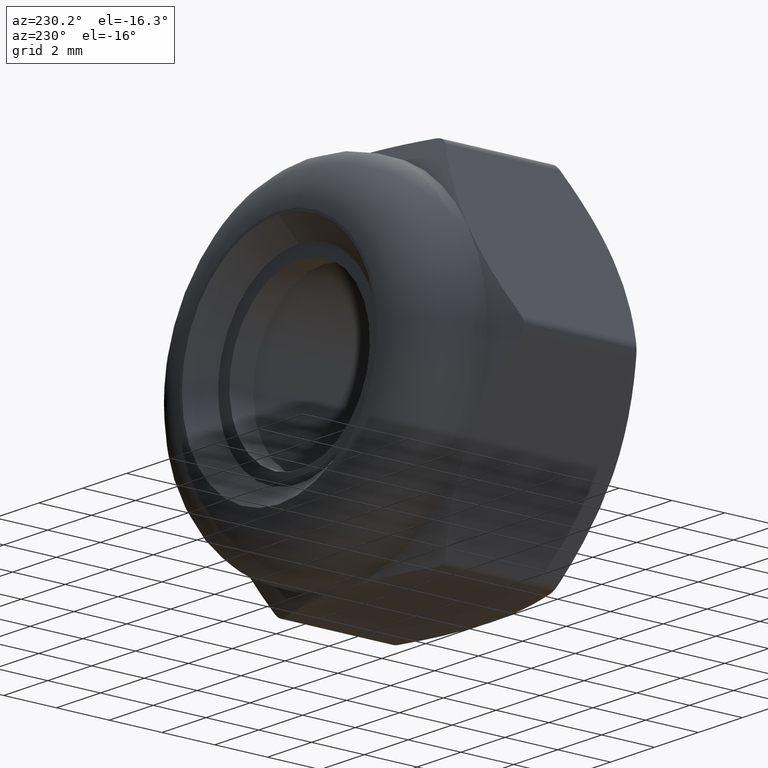
[diagram: clean part render]
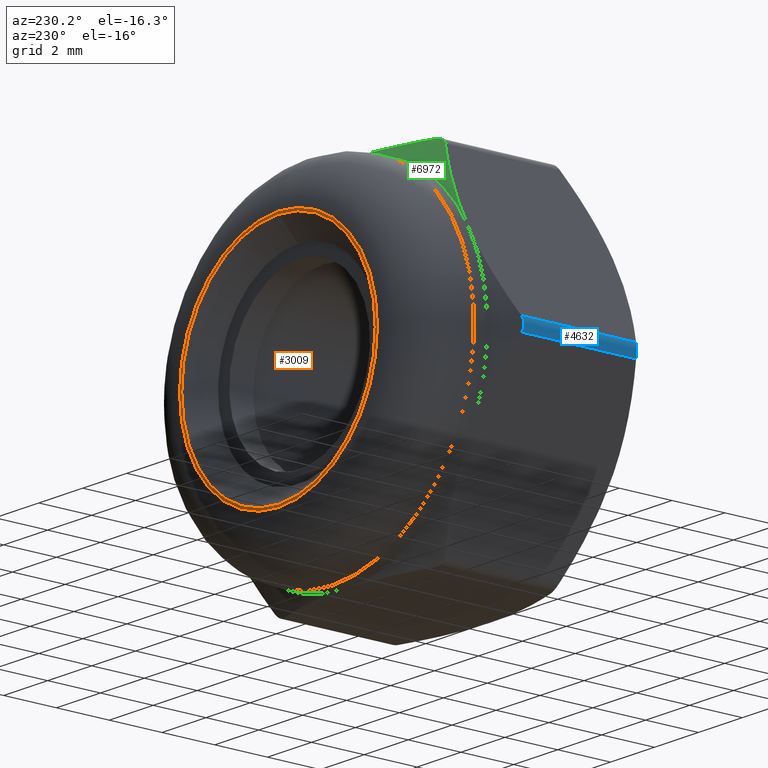
[diagram: same view with three faces highlighted in distinct colors, each labeled with its STEP entity id]
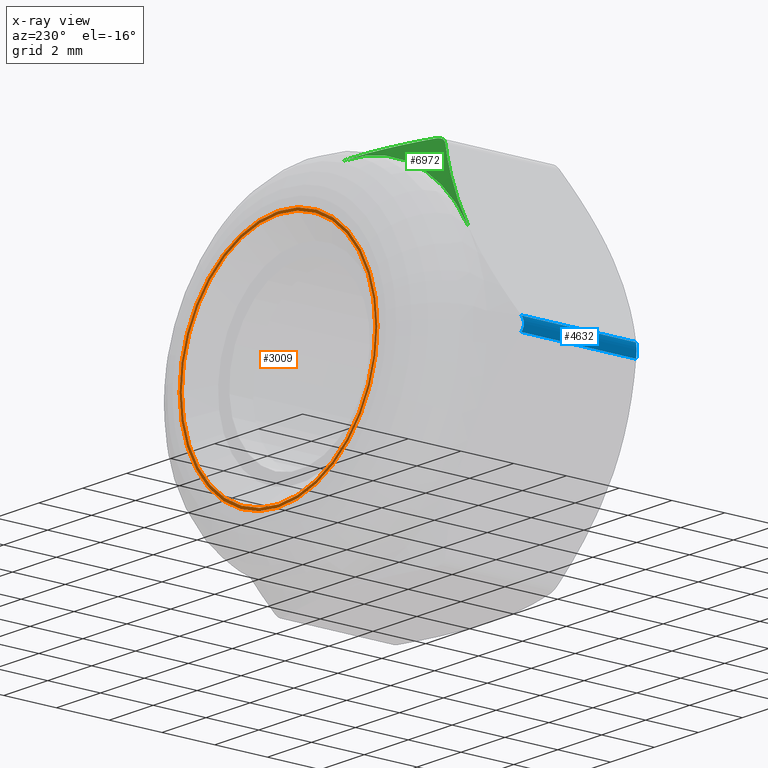
[diagram: x-ray of the same camera — body ghosted, the three highlighted faces saturated]
A machine part, auxiliary view with three faces highlighted in distinct colors.
The next image is the same camera in x-ray (body ghosted, the three faces saturated) — at least one of them is partly hidden behind the body in this view.
Their STEP definitions:

[orange] entity #3009 — the highlighted planar face has unit normal (0, 1, 0).
#717 = AXIS2_PLACEMENT_3D ( 'NONE', #7190, #9565, #10861 ) ;
#1738 = AXIS2_PLACEMENT_3D ( 'NONE', #13026, #11769, #2834 ) ;
#1916 = EDGE_CURVE ( 'NONE', #7016, #7016, #3980, .T. ) ;
#2834 = DIRECTION ( 'NONE',  ( 0.000000000000000000, 0.000000000000000000, 1.000000000000000000 ) ) ;
#2941 = FACE_OUTER_BOUND ( 'NONE', #10433, .T. ) ;
#3009 = ADVANCED_FACE ( 'NONE', ( #16548, #2941 ), #11384, .T. ) ;
#3390 = CARTESIAN_POINT ( 'NONE',  ( 0.000000000000000000, 5.249999999999999112, 4.399999999999995026 ) ) ;
#3980 = CIRCLE ( 'NONE', #1738, 4.499999999999999112 ) ;
#4721 = ORIENTED_EDGE ( 'NONE', *, *, #12827, .T. ) ;
#4854 = ORIENTED_EDGE ( 'NONE', *, *, #1916, .T. ) ;
#6006 = DIRECTION ( 'NONE',  ( 0.000000000000000000, 1.000000000000000000, 0.000000000000000000 ) ) ;
#6131 = CARTESIAN_POINT ( 'NONE',  ( 0.000000000000000000, 5.249999999999999112, 4.499999999999999112 ) ) ;
#6451 = EDGE_LOOP ( 'NONE', ( #4721 ) ) ;
#7016 = VERTEX_POINT ( 'NONE', #6131 ) ;
#7190 = CARTESIAN_POINT ( 'NONE',  ( 0.000000000000000000, 5.249999999999999112, 0.000000000000000000 ) ) ;
#9565 = DIRECTION ( 'NONE',  ( -0.000000000000000000, -1.000000000000000000, -0.000000000000000000 ) ) ;
#9929 = DIRECTION ( 'NONE',  ( 0.000000000000000000, -0.000000000000000000, 1.000000000000000000 ) ) ;
#10083 = CARTESIAN_POINT ( 'NONE',  ( 0.000000000000000000, 5.249999999999999112, 0.000000000000000000 ) ) ;
#10433 = EDGE_LOOP ( 'NONE', ( #4854 ) ) ;
#10637 = VERTEX_POINT ( 'NONE', #3390 ) ;
#10861 = DIRECTION ( 'NONE',  ( 0.000000000000000000, 0.000000000000000000, 1.000000000000000000 ) ) ;
#11181 = AXIS2_PLACEMENT_3D ( 'NONE', #10083, #6006, #9929 ) ;
#11384 = PLANE ( 'NONE',  #11181 ) ;
#11769 = DIRECTION ( 'NONE',  ( 0.000000000000000000, 1.000000000000000000, 0.000000000000000000 ) ) ;
#12827 = EDGE_CURVE ( 'NONE', #10637, #10637, #16039, .T. ) ;
#13026 = CARTESIAN_POINT ( 'NONE',  ( 0.000000000000000000, 5.249999999999999112, 0.000000000000000000 ) ) ;
#16039 = CIRCLE ( 'NONE', #717, 4.399999999999995026 ) ;
#16548 = FACE_BOUND ( 'NONE', #6451, .T. ) ;

[blue] entity #4632 — the highlighted cylindrical surface (edge-blend (fillet) strip) has radius 0.5 mm, axis along (0, -1, 0).
#461 = CARTESIAN_POINT ( 'NONE',  ( -7.403887947473399400, 2.146267542209216561, 0.1760899014298786258 ) ) ;
#682 = CARTESIAN_POINT ( 'NONE',  ( -7.403868663971313602, 2.146279634693531335, -0.1761233014345777170 ) ) ;
#2105 = CARTESIAN_POINT ( 'NONE',  ( -7.361215932171326415, -2.173026712445665254, 0.2499999999937660145 ) ) ;
#2384 = AXIS2_PLACEMENT_3D ( 'NONE', #15224, #12649, #7535 ) ;
#2792 = VERTEX_POINT ( 'NONE', #7921 ) ;
#3050 = LINE ( 'NONE', #3072, #13652 ) ;
#3072 = CARTESIAN_POINT ( 'NONE',  ( -7.361215932167727516, 2.750000000000000000, -0.2500000000000002220 ) ) ;
#3223 = EDGE_CURVE ( 'NONE', #3855, #14028, #10247, .T. ) ;
#3796 = CARTESIAN_POINT ( 'NONE',  ( -7.361215932171327303, 2.173026712445665254, -0.2499999999937657369 ) ) ;
#3855 = VERTEX_POINT ( 'NONE', #3796 ) ;
#4145 = FACE_OUTER_BOUND ( 'NONE', #5066, .T. ) ;
#4334 = CARTESIAN_POINT ( 'NONE',  ( -7.361215932167727516, 2.173026712447922115, 0.2499999999999988065 ) ) ;
#4632 = ADVANCED_FACE ( 'NONE', ( #4145 ), #16136, .T. ) ;
#4778 = CARTESIAN_POINT ( 'NONE',  ( -7.361215932171326415, -2.173026712445665254, 0.2499999999937660145 ) ) ;
#4874 = VECTOR ( 'NONE', #12207, 1000.000000000000000 ) ;
#5066 = EDGE_LOOP ( 'NONE', ( #10701, #11298, #5711, #11090 ) ) ;
#5175 = CARTESIAN_POINT ( 'NONE',  ( -7.361215932167727516, 2.173026712447922115, 0.2499999999999988065 ) ) ;
#5711 = ORIENTED_EDGE ( 'NONE', *, *, #10847, .F. ) ;
#5724 = CARTESIAN_POINT ( 'NONE',  ( -7.428119201708031305, 2.131250094829909347, -0.08897916410198437875 ) ) ;
#6983 = B_SPLINE_CURVE_WITH_KNOTS ( 'NONE', 3,
 ( #4778, #12263, #7197, #13545, #12208, #7154 ),
 .UNSPECIFIED., .F., .F.,
 ( 4, 2, 4 ),
 ( 8.290065257313587331E-15, 0.0002647338970894006090, 0.0005294677941705110830 ),
 .UNSPECIFIED. ) ;
#7154 = CARTESIAN_POINT ( 'NONE',  ( -7.361215932167727516, -2.173026712447922115, -0.2500000000000003331 ) ) ;
#7197 = CARTESIAN_POINT ( 'NONE',  ( -7.428119201708030417, -2.131250094829910235, 0.08897916410198956905 ) ) ;
#7535 = DIRECTION ( 'NONE',  ( 0.000000000000000000, 0.000000000000000000, -1.000000000000000000 ) ) ;
#7921 = CARTESIAN_POINT ( 'NONE',  ( -7.361215932167727516, -2.173026712447922115, -0.2500000000000003331 ) ) ;
#8980 = EDGE_CURVE ( 'NONE', #14028, #9353, #11670, .T. ) ;
#9353 = VERTEX_POINT ( 'NONE', #2105 ) ;
#9457 = CARTESIAN_POINT ( 'NONE',  ( -7.428286810551115948, 2.131145876880672141, 0.08803228314852329373 ) ) ;
#9791 = CARTESIAN_POINT ( 'NONE',  ( -7.361215932167727516, 2.750000000000000000, 0.2499999999999997224 ) ) ;
#10247 = B_SPLINE_CURVE_WITH_KNOTS ( 'NONE', 3,
 ( #10760, #682, #5724, #9457, #461, #4334 ),
 .UNSPECIFIED., .F., .F.,
 ( 4, 2, 4 ),
 ( 8.291145696637294835E-15, 0.0002647338970894093911, 0.0005294677941705275628 ),
 .UNSPECIFIED. ) ;
#10701 = ORIENTED_EDGE ( 'NONE', *, *, #3223, .F. ) ;
#10760 = CARTESIAN_POINT ( 'NONE',  ( -7.361215932171327303, 2.173026712445665254, -0.2499999999937657369 ) ) ;
#10847 = EDGE_CURVE ( 'NONE', #9353, #2792, #6983, .T. ) ;
#11090 = ORIENTED_EDGE ( 'NONE', *, *, #8980, .F. ) ;
#11298 = ORIENTED_EDGE ( 'NONE', *, *, #11423, .F. ) ;
#11423 = EDGE_CURVE ( 'NONE', #2792, #3855, #3050, .T. ) ;
#11670 = LINE ( 'NONE', #9791, #4874 ) ;
#12207 = DIRECTION ( 'NONE',  ( 0.000000000000000000, -1.000000000000000000, 0.000000000000000000 ) ) ;
#12208 = CARTESIAN_POINT ( 'NONE',  ( -7.403887947474091291, -2.146267542208787127, -0.1760899014280399300 ) ) ;
#12263 = CARTESIAN_POINT ( 'NONE',  ( -7.403868663971312714, -2.146279634693531335, 0.1761233014345792991 ) ) ;
#12649 = DIRECTION ( 'NONE',  ( 0.000000000000000000, -1.000000000000000000, 0.000000000000000000 ) ) ;
#13545 = CARTESIAN_POINT ( 'NONE',  ( -7.428286810551114172, -2.131145876880670809, -0.08803228314851260783 ) ) ;
#13652 = VECTOR ( 'NONE', #16105, 1000.000000000000000 ) ;
#14028 = VERTEX_POINT ( 'NONE', #5175 ) ;
#15224 = CARTESIAN_POINT ( 'NONE',  ( -6.928203230275507885, 2.750000000000000000, -1.084202172485504434E-16 ) ) ;
#16105 = DIRECTION ( 'NONE',  ( -0.000000000000000000, 1.000000000000000000, -0.000000000000000000 ) ) ;
#16136 = CYLINDRICAL_SURFACE ( 'NONE', #2384, 0.5000000000000000000 ) ;

[green] entity #6972 — the highlighted conical surface has half-angle 56.31 deg.
#920 = ORIENTED_EDGE ( 'NONE', *, *, #15835, .T. ) ;
#1696 = CARTESIAN_POINT ( 'NONE',  ( 0.000000000000000000, 2.750000000000000000, 6.500000000000000000 ) ) ;
#2318 = CARTESIAN_POINT ( 'NONE',  ( -0.5871415983681422812, 2.750000000000000444, 6.500000000000001776 ) ) ;
#2487 = CIRCLE ( 'NONE', #10422, 6.499999999999998224 ) ;
#3301 = CONICAL_SURFACE ( 'NONE', #8629, 6.500000000000000000, 0.9827937232473293871 ) ;
#4098 = FACE_OUTER_BOUND ( 'NONE', #10704, .T. ) ;
#4401 = B_SPLINE_CURVE_WITH_KNOTS ( 'NONE', 3,
 ( #12786, #12580, #11404, #16533 ),
 .UNSPECIFIED., .F., .F.,
 ( 4, 4 ),
 ( 0.0003001430305574236189, 0.003811933486162278392 ),
 .UNSPECIFIED. ) ;
#4754 = CARTESIAN_POINT ( 'NONE',  ( -2.035294072302089585, 2.546341380459990589, 6.499999999999997335 ) ) ;
#5110 = EDGE_CURVE ( 'NONE', #10919, #9897, #4401, .T. ) ;
#6024 = CARTESIAN_POINT ( 'NONE',  ( -2.896296878045898193, 2.342599341536974134, 6.500000000000000000 ) ) ;
#6141 = CARTESIAN_POINT ( 'NONE',  ( -3.464101615139304702, 2.173026712447436282, 6.499999999999999112 ) ) ;
#6486 = VERTEX_POINT ( 'NONE', #1696 ) ;
#6550 = EDGE_CURVE ( 'NONE', #6486, #9897, #2487, .T. ) ;
#6650 = CARTESIAN_POINT ( 'NONE',  ( 0.000000000000000000, 2.750000000000000000, 0.000000000000000000 ) ) ;
#6718 = CARTESIAN_POINT ( 'NONE',  ( -3.464101615139304702, 2.173026712447436282, 6.499999999999999112 ) ) ;
#6972 = ADVANCED_FACE ( 'NONE', ( #4098 ), #3301, .T. ) ;
#7273 = CARTESIAN_POINT ( 'NONE',  ( -3.854461585226516718, 2.146279634693613048, 6.323876698565194410 ) ) ;
#8062 = DIRECTION ( 'NONE',  ( -0.000000000000000000, -1.000000000000000000, -0.000000000000000000 ) ) ;
#8612 = B_SPLINE_CURVE_WITH_KNOTS ( 'NONE', 3,
 ( #13656, #7273, #11589, #10225, #10131, #15226 ),
 .UNSPECIFIED., .F., .F.,
 ( 4, 2, 4 ),
 ( 8.290604385452445905E-15, 0.0002647338970885992752, 0.0005294677941689078732 ),
 .UNSPECIFIED. ) ;
#8629 = AXIS2_PLACEMENT_3D ( 'NONE', #6650, #10298, #11592 ) ;
#8771 = CARTESIAN_POINT ( 'NONE',  ( -2.322932097941823759, 2.485013099786196111, 6.500000000000000000 ) ) ;
#9897 = VERTEX_POINT ( 'NONE', #12854 ) ;
#10131 = CARTESIAN_POINT ( 'NONE',  ( -3.549445645750310074, 2.146267542208845303, 6.499999999999990230 ) ) ;
#10225 = CARTESIAN_POINT ( 'NONE',  ( -3.637905211716814691, 2.131145876880583323, 6.477101226107984999 ) ) ;
#10283 = EDGE_CURVE ( 'NONE', #6486, #12238, #12552, .T. ) ;
#10298 = DIRECTION ( 'NONE',  ( -0.000000000000000000, -1.000000000000000000, -0.000000000000000000 ) ) ;
#10422 = AXIS2_PLACEMENT_3D ( 'NONE', #13209, #8062, #14522 ) ;
#10704 = EDGE_LOOP ( 'NONE', ( #15453, #920, #16474, #13697 ) ) ;
#10919 = VERTEX_POINT ( 'NONE', #14947 ) ;
#11404 = CARTESIAN_POINT ( 'NONE',  ( -5.036221027235756154, 2.750000000000000444, 4.277009302680947478 ) ) ;
#11589 = CARTESIAN_POINT ( 'NONE',  ( -3.791117817374221932, 2.131250094829999497, 6.388450348966760117 ) ) ;
#11592 = DIRECTION ( 'NONE',  ( 0.000000000000000000, 0.000000000000000000, -1.000000000000000000 ) ) ;
#12139 = CARTESIAN_POINT ( 'NONE',  ( 0.000000000000000000, 2.750000000000000000, 6.500000000000000000 ) ) ;
#12238 = VERTEX_POINT ( 'NONE', #6718 ) ;
#12552 = B_SPLINE_CURVE_WITH_KNOTS ( 'NONE', 3,
 ( #12139, #2318, #13791, #4754, #8771, #6024, #12573, #6141 ),
 .UNSPECIFIED., .F., .F.,
 ( 4, 2, 2, 4 ),
 ( 0.02048176645499884263, 0.02224383553516003087, 0.02312487007524062499, 0.02400590461532121911 ),
 .UNSPECIFIED. ) ;
#12573 = CARTESIAN_POINT ( 'NONE',  ( -3.182342982413255861, 2.261370644241339711, 6.500000000000000000 ) ) ;
#12580 = CARTESIAN_POINT ( 'NONE',  ( -4.461368920204694000, 2.526864816324428276, 5.272682358896769728 ) ) ;
#12786 = CARTESIAN_POINT ( 'NONE',  ( -3.897114317026375119, 2.173026712445665254, 6.250000000006232348 ) ) ;
#12854 = CARTESIAN_POINT ( 'NONE',  ( -5.629165124598850767, 2.750000000000000000, 3.250000000000000000 ) ) ;
#13209 = CARTESIAN_POINT ( 'NONE',  ( 0.000000000000000000, 2.750000000000000000, 0.000000000000000000 ) ) ;
#13656 = CARTESIAN_POINT ( 'NONE',  ( -3.897114317026375119, 2.173026712445665254, 6.250000000006232348 ) ) ;
#13697 = ORIENTED_EDGE ( 'NONE', *, *, #6550, .T. ) ;
#13791 = CARTESIAN_POINT ( 'NONE',  ( -1.169078168247126293, 2.696194567226849248, 6.500000000000000000 ) ) ;
#14522 = DIRECTION ( 'NONE',  ( 0.000000000000000000, 0.000000000000000000, 1.000000000000000000 ) ) ;
#14947 = CARTESIAN_POINT ( 'NONE',  ( -3.897114317026375119, 2.173026712445665254, 6.250000000006232348 ) ) ;
#15226 = CARTESIAN_POINT ( 'NONE',  ( -3.464101615139304702, 2.173026712447436282, 6.499999999999999112 ) ) ;
#15453 = ORIENTED_EDGE ( 'NONE', *, *, #5110, .F. ) ;
#15835 = EDGE_CURVE ( 'NONE', #10919, #12238, #8612, .T. ) ;
#16474 = ORIENTED_EDGE ( 'NONE', *, *, #10283, .F. ) ;
#16533 = CARTESIAN_POINT ( 'NONE',  ( -5.629165124598850767, 2.750000000000000000, 3.250000000000000000 ) ) ;